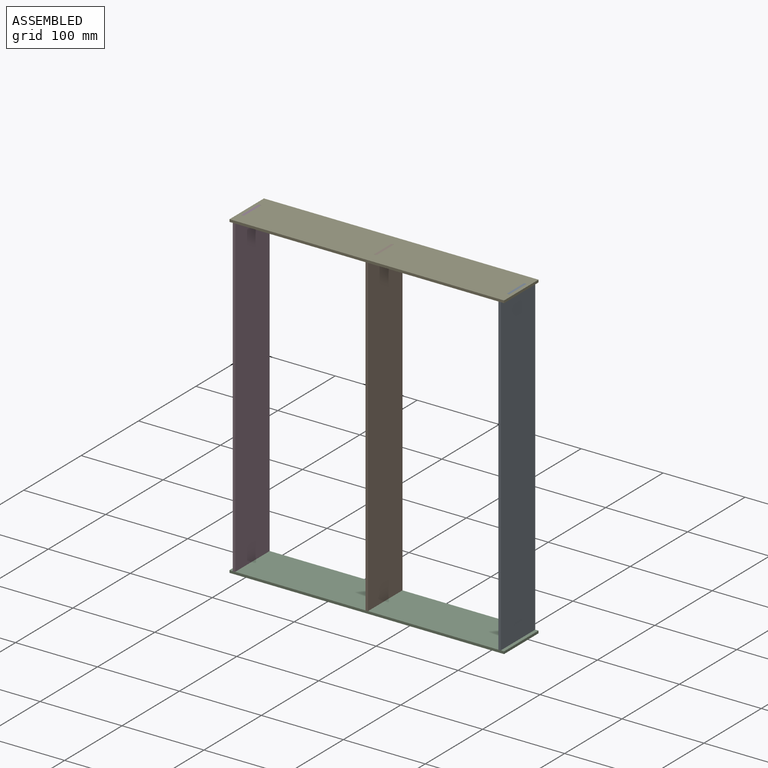
[diagram: assembled view]
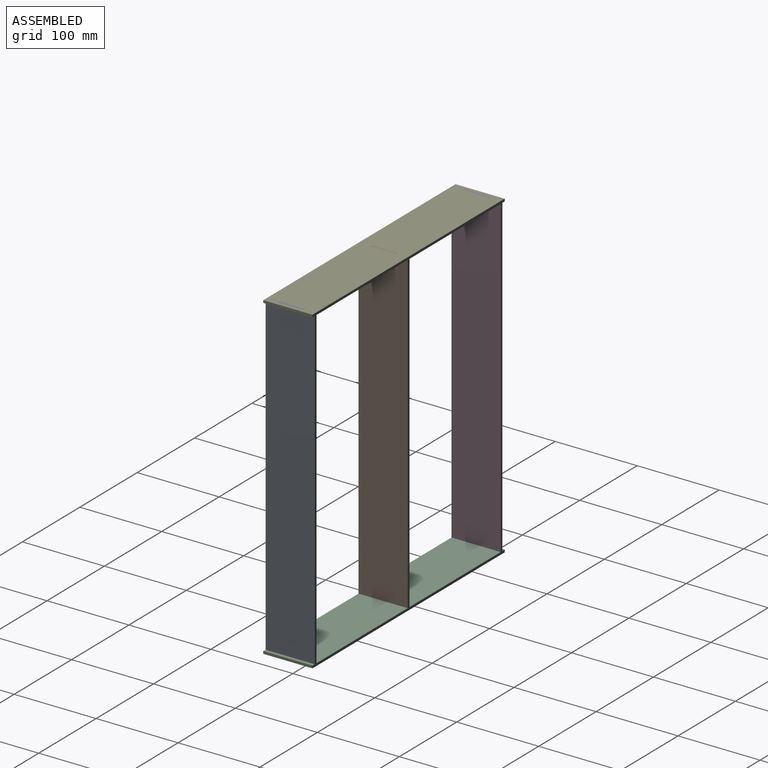
[diagram: assembled view, second angle]
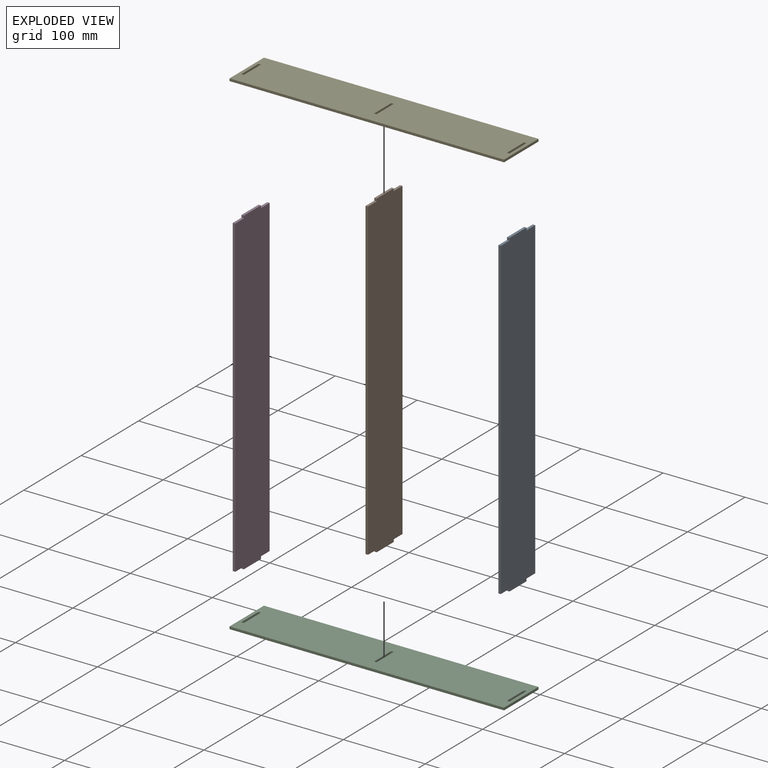
[diagram: exploded view]
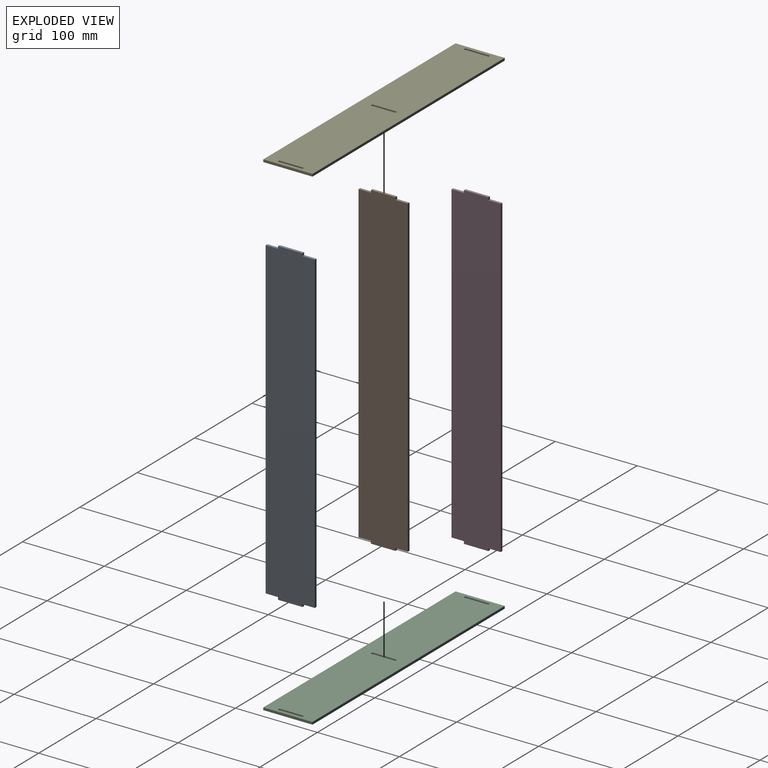
[diagram: exploded view, second angle]
ASSEMBLY  parts=5 mates=4
PART A: 14 faces, bbox 60x390x3 mm
  f0: plane 3x3mm, normal (-1,0,0), area 9mm2, adj f1,f11,f12,f13
  f1: plane 29.8x3mm, normal (0,-1,0), area 89.4mm2, adj f0,f2,f12,f13
  f2: plane 3x3mm, normal (1,0,0), area 9mm2, adj f1,f3,f12,f13
  f3: plane 15.1x3mm, normal (0,-1,0), area 45.3mm2, adj f2,f4,f12,f13
  f4: plane 384x3mm, normal (1,0,0), area 1152mm2, adj f3,f5,f12,f13
  f5: plane 15.1x3mm, normal (0,1,0), area 45.3mm2, adj f4,f6,f12,f13
  f6: plane 3x3mm, normal (1,0,0), area 9mm2, adj f5,f7,f12,f13
  f7: plane 29.8x3mm, normal (0,1,0), area 89.4mm2, adj f6,f8,f12,f13
  f8: plane 3x3mm, normal (-1,0,0), area 9mm2, adj f7,f9,f12,f13
  f9: plane 15.1x3mm, normal (0,1,0), area 45.3mm2, adj f8,f10,f12,f13
  f10: plane 384x3mm, normal (-1,0,0), area 1152mm2, adj f9,f11,f12,f13
  f11: plane 15.1x3mm, normal (0,-1,0), area 45.3mm2, adj f0,f10,f12,f13
  f12: plane 390x60mm, normal (0,0,1), area 23218.8mm2, adj f0,f1,f2,f3,f4,f5,f6,f7
  f13: plane 390x60mm, normal (0,0,-1), area 23218.8mm2, adj f0,f1,f2,f3,f4,f5,f6,f7
PART B: same geometry as A
PART C: 18 faces, bbox 335x60x3 mm
  f0: plane 335x3mm, normal (0,-1,0), area 1005mm2, adj f1,f15,f16,f17
  f1: plane 60x3mm, normal (1,0,0), area 180mm2, adj f0,f2,f16,f17
  f2: plane 335x3mm, normal (0,1,0), area 1005mm2, adj f1,f15,f16,f17
  f3: plane 30x3mm, normal (-1,0,0), area 90mm2, adj f4,f12,f16,f17
  f4: plane 3x3mm, normal (0,1,0), area 9mm2, adj f3,f5,f16,f17
  f5: plane 30x3mm, normal (1,0,0), area 90mm2, adj f4,f12,f16,f17
  f6: plane 3x3mm, normal (0,1,0), area 9mm2, adj f7,f13,f16,f17
  f7: plane 30x3mm, normal (1,0,0), area 90mm2, adj f6,f8,f16,f17
  f8: plane 3x3mm, normal (0,-1,0), area 9mm2, adj f7,f13,f16,f17
  f9: plane 3x3mm, normal (0,1,0), area 9mm2, adj f10,f14,f16,f17
  f10: plane 30x3mm, normal (1,0,0), area 90mm2, adj f9,f11,f16,f17
  f11: plane 3x3mm, normal (0,-1,0), area 9mm2, adj f10,f14,f16,f17
  f12: plane 3x3mm, normal (0,-1,0), area 9mm2, adj f3,f5,f16,f17
  f13: plane 30x3mm, normal (-1,0,0), area 90mm2, adj f6,f8,f16,f17
  f14: plane 30x3mm, normal (-1,0,0), area 90mm2, adj f9,f11,f16,f17
  f15: plane 60x3mm, normal (-1,0,0), area 180mm2, adj f0,f2,f16,f17
  f16: plane 335x60mm, normal (0,0,1), area 19830mm2, adj f0,f1,f2,f3,f4,f5,f6,f7
  f17: plane 335x60mm, normal (0,0,-1), area 19830mm2, adj f0,f1,f2,f3,f4,f5,f6,f7
PART D: same geometry as A
PART E: same geometry as C
PLACE A rot(axis=(-0.58,0.58,-0.58),120deg) t=(294.56,95.11,370.07)mm
PLACE B rot(axis=(-0.58,0.58,-0.58),120deg) t=(132.56,95.11,370.07)mm
PLACE C t=(-33.44,35.11,-19.93)mm
PLACE D rot(axis=(0.58,-0.58,-0.58),120deg) t=(-26.44,95.11,-19.93)mm
PLACE E t=(-33.44,35.11,367.07)mm
MATE pin_slot A.f7 <-> C.f17  axis (0,0,-1) through (296.06,65.11,-19.93)mm
MATE pin_slot D.f1 <-> C.f17  axis (0,0,-1) through (-27.94,65.11,-19.93)mm
MATE pin_slot E.f16 <-> B.f1  axis (0,0,1) through (134.06,65.11,370.07)mm
MATE pin_slot B.f7 <-> C.f17  axis (0,0,-1) through (134.06,65.11,-19.93)mm
